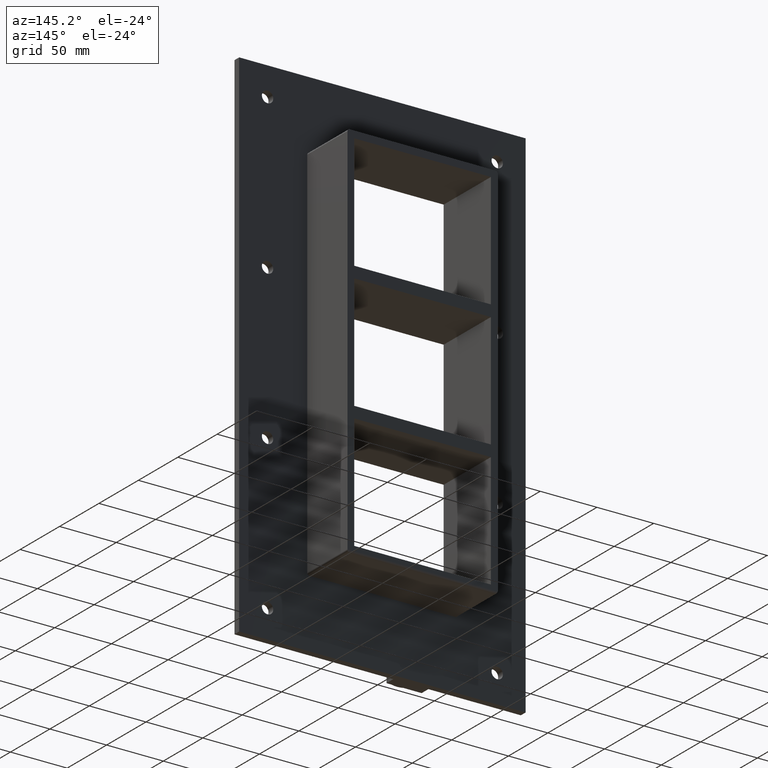
[diagram: clean part render]
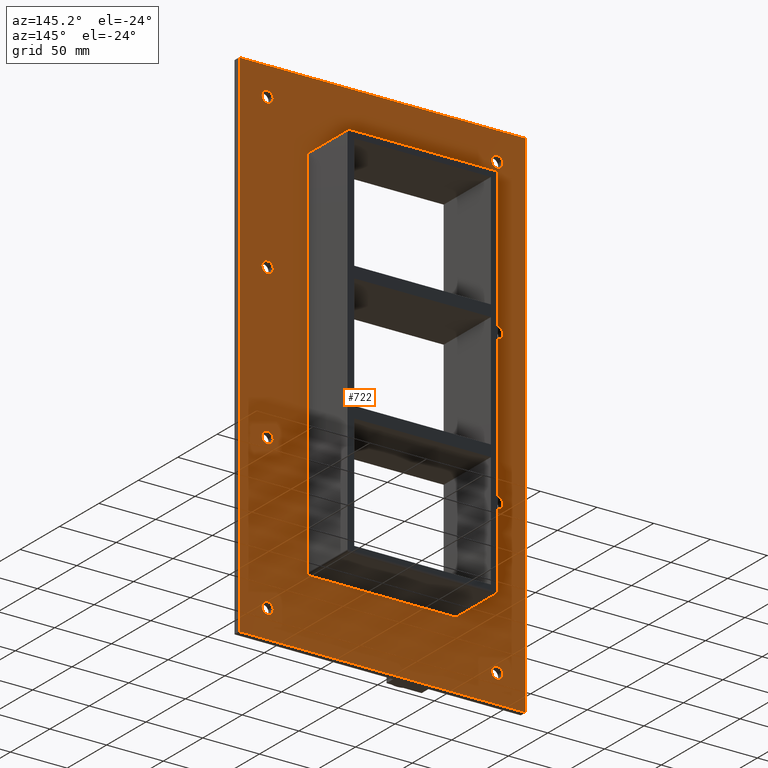
[diagram: same view with one face highlighted and labeled with its STEP entity id]
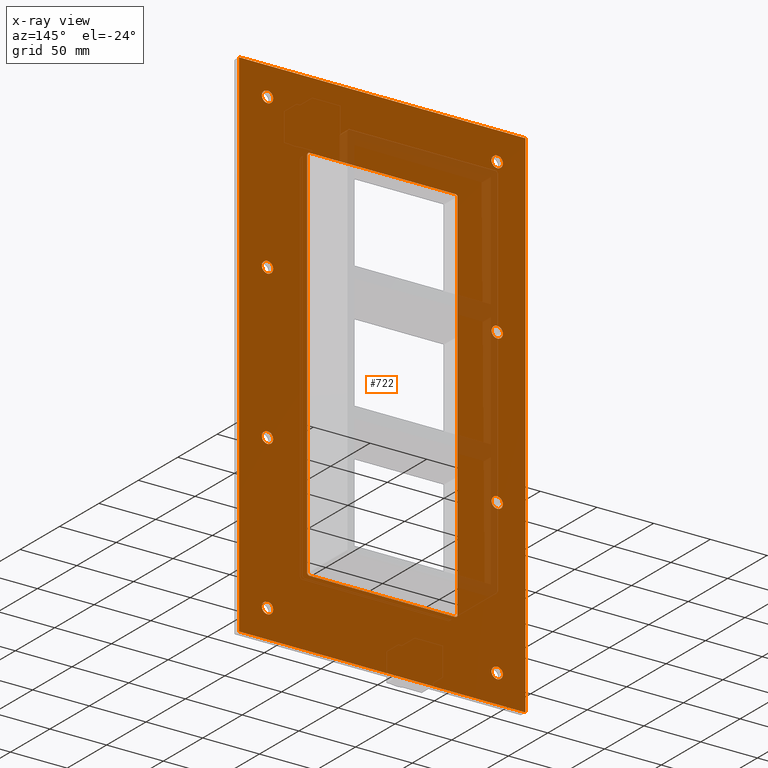
[diagram: x-ray of the same camera — body ghosted, the highlighted face saturated]
A machine part, auxiliary view. The second image highlights one B-rep face of the part: STEP entity #722.
The next image is the same camera in x-ray: the body ghosted, the highlighted face saturated — about 10% of this face is hidden behind the body in this view.
In plain terms, the highlighted planar face has unit normal (0, 1, 0).
Its self-contained STEP definition (entity closure, byte-faithful):
#73=CARTESIAN_POINT('',(-106.25000000000013,6.000000000000014,-202.49999999999997));
#74=VERTEX_POINT('',#73);
#75=CARTESIAN_POINT('',(-101.25000000000013,6.000000000000014,-202.49999999999997));
#76=DIRECTION('',(0.0,-1.0,0.0));
#77=DIRECTION('',(1.0,0.0,0.0));
#78=AXIS2_PLACEMENT_3D('',#75,#76,#77);
#79=CIRCLE('',#78,5.0);
#80=EDGE_CURVE('',#74,#74,#79,.T.);
#101=CARTESIAN_POINT('',(96.249999999999872,6.000000000000014,-67.499999999999972));
#102=VERTEX_POINT('',#101);
#103=CARTESIAN_POINT('',(101.24999999999987,6.000000000000014,-67.499999999999972));
#104=DIRECTION('',(0.0,-1.0,0.0));
#105=DIRECTION('',(1.0,0.0,0.0));
#106=AXIS2_PLACEMENT_3D('',#103,#104,#105);
#107=CIRCLE('',#106,5.0);
#108=EDGE_CURVE('',#102,#102,#107,.T.);
#129=CARTESIAN_POINT('',(-106.25000000000013,6.000000000000014,-67.499999999999972));
#130=VERTEX_POINT('',#129);
#131=CARTESIAN_POINT('',(-101.25000000000013,6.000000000000014,-67.499999999999972));
#132=DIRECTION('',(0.0,-1.0,0.0));
#133=DIRECTION('',(1.0,0.0,0.0));
#134=AXIS2_PLACEMENT_3D('',#131,#132,#133);
#135=CIRCLE('',#134,5.0);
#136=EDGE_CURVE('',#130,#130,#135,.T.);
#157=CARTESIAN_POINT('',(96.249999999999872,6.000000000000014,67.500000000000028));
#158=VERTEX_POINT('',#157);
#159=CARTESIAN_POINT('',(101.24999999999987,6.000000000000014,67.500000000000028));
#160=DIRECTION('',(0.0,-1.0,0.0));
#161=DIRECTION('',(1.0,0.0,0.0));
#162=AXIS2_PLACEMENT_3D('',#159,#160,#161);
#163=CIRCLE('',#162,5.0);
#164=EDGE_CURVE('',#158,#158,#163,.T.);
#185=CARTESIAN_POINT('',(-106.25000000000013,6.000000000000014,67.500000000000028));
#186=VERTEX_POINT('',#185);
#187=CARTESIAN_POINT('',(-101.25000000000013,6.000000000000014,67.500000000000028));
#188=DIRECTION('',(0.0,-1.0,0.0));
#189=DIRECTION('',(1.0,0.0,0.0));
#190=AXIS2_PLACEMENT_3D('',#187,#188,#189);
#191=CIRCLE('',#190,5.0);
#192=EDGE_CURVE('',#186,#186,#191,.T.);
#213=CARTESIAN_POINT('',(96.249999999999872,6.000000000000014,-202.5));
#214=VERTEX_POINT('',#213);
#215=CARTESIAN_POINT('',(101.24999999999987,6.000000000000014,-202.5));
#216=DIRECTION('',(0.0,-1.0,0.0));
#217=DIRECTION('',(1.0,0.0,0.0));
#218=AXIS2_PLACEMENT_3D('',#215,#216,#217);
#219=CIRCLE('',#218,5.0);
#220=EDGE_CURVE('',#214,#214,#219,.T.);
#241=CARTESIAN_POINT('',(-106.25000000000013,6.000000000000014,202.50000000000003));
#242=VERTEX_POINT('',#241);
#243=CARTESIAN_POINT('',(-101.25000000000013,6.000000000000014,202.50000000000003));
#244=DIRECTION('',(0.0,-1.0,0.0));
#245=DIRECTION('',(1.0,0.0,0.0));
#246=AXIS2_PLACEMENT_3D('',#243,#244,#245);
#247=CIRCLE('',#246,5.0);
#248=EDGE_CURVE('',#242,#242,#247,.T.);
#269=CARTESIAN_POINT('',(96.249999999999872,6.000000000000014,202.50000000000003));
#270=VERTEX_POINT('',#269);
#271=CARTESIAN_POINT('',(101.24999999999987,6.000000000000014,202.50000000000003));
#272=DIRECTION('',(0.0,-1.0,0.0));
#273=DIRECTION('',(1.0,0.0,0.0));
#274=AXIS2_PLACEMENT_3D('',#271,#272,#273);
#275=CIRCLE('',#274,5.0);
#276=EDGE_CURVE('',#270,#270,#275,.T.);
#589=CARTESIAN_POINT('',(-1.205161E-014,6.000000000000001,2.410322E-014));
#590=DIRECTION('',(0.0,1.0,0.0));
#591=DIRECTION('',(0.0,0.0,1.0));
#592=AXIS2_PLACEMENT_3D('',#589,#590,#591);
#593=PLANE('',#592);
#594=CARTESIAN_POINT('',(-126.25,6.000000000000001,227.50000000000003));
#595=VERTEX_POINT('',#594);
#596=CARTESIAN_POINT('',(126.25,6.000000000000001,227.50000000000003));
#597=VERTEX_POINT('',#596);
#598=CARTESIAN_POINT('',(-126.25,6.000000000000001,227.50000000000003));
#599=DIRECTION('',(1.0,0.0,0.0));
#600=VECTOR('',#599,252.5);
#601=LINE('',#598,#600);
#602=EDGE_CURVE('',#595,#597,#601,.T.);
#603=ORIENTED_EDGE('',*,*,#602,.T.);
#604=CARTESIAN_POINT('',(126.25,6.000000000000001,-227.49999999999997));
#605=VERTEX_POINT('',#604);
#606=CARTESIAN_POINT('',(126.24999999999999,6.000000000000001,227.50000000000003));
#607=DIRECTION('',(0.0,0.0,-1.0));
#608=VECTOR('',#607,455.0);
#609=LINE('',#606,#608);
#610=EDGE_CURVE('',#597,#605,#609,.T.);
#611=ORIENTED_EDGE('',*,*,#610,.T.);
#612=CARTESIAN_POINT('',(-126.25,6.000000000000001,-227.49999999999997));
#613=VERTEX_POINT('',#612);
#614=CARTESIAN_POINT('',(126.24999999999999,6.000000000000001,-227.5));
#615=DIRECTION('',(-1.0,0.0,0.0));
#616=VECTOR('',#615,252.5);
#617=LINE('',#614,#616);
#618=EDGE_CURVE('',#605,#613,#617,.T.);
#619=ORIENTED_EDGE('',*,*,#618,.T.);
#620=CARTESIAN_POINT('',(-126.25,6.000000000000001,-227.5));
#621=DIRECTION('',(0.0,0.0,1.0));
#622=VECTOR('',#621,455.0);
#623=LINE('',#620,#622);
#624=EDGE_CURVE('',#613,#595,#623,.T.);
#625=ORIENTED_EDGE('',*,*,#624,.T.);
#626=EDGE_LOOP('',(#603,#611,#619,#625));
#627=FACE_OUTER_BOUND('',#626,.T.);
#628=ORIENTED_EDGE('',*,*,#80,.T.);
#629=EDGE_LOOP('',(#628));
#630=FACE_BOUND('',#629,.T.);
#631=ORIENTED_EDGE('',*,*,#108,.T.);
#632=EDGE_LOOP('',(#631));
#633=FACE_BOUND('',#632,.T.);
#634=ORIENTED_EDGE('',*,*,#136,.T.);
#635=EDGE_LOOP('',(#634));
#636=FACE_BOUND('',#635,.T.);
#637=ORIENTED_EDGE('',*,*,#164,.T.);
#638=EDGE_LOOP('',(#637));
#639=FACE_BOUND('',#638,.T.);
#640=ORIENTED_EDGE('',*,*,#192,.T.);
#641=EDGE_LOOP('',(#640));
#642=FACE_BOUND('',#641,.T.);
#643=ORIENTED_EDGE('',*,*,#220,.T.);
#644=EDGE_LOOP('',(#643));
#645=FACE_BOUND('',#644,.T.);
#646=ORIENTED_EDGE('',*,*,#248,.T.);
#647=EDGE_LOOP('',(#646));
#648=FACE_BOUND('',#647,.T.);
#649=ORIENTED_EDGE('',*,*,#276,.T.);
#650=EDGE_LOOP('',(#649));
#651=FACE_BOUND('',#650,.T.);
#652=CARTESIAN_POINT('',(-66.25,6.000000000000001,165.49999999999997));
#653=VERTEX_POINT('',#652);
#654=CARTESIAN_POINT('',(-64.25,6.000000000000001,167.5));
#655=VERTEX_POINT('',#654);
#656=CARTESIAN_POINT('',(-64.25,6.000000000000001,165.49999999999997));
#657=DIRECTION('',(0.0,1.0,0.0));
#658=DIRECTION('',(-0.707106781186541,0.0,0.707106781186554));
#659=AXIS2_PLACEMENT_3D('',#656,#657,#658);
#660=CIRCLE('',#659,2.0);
#661=EDGE_CURVE('',#653,#655,#660,.T.);
#662=ORIENTED_EDGE('',*,*,#661,.F.);
#663=CARTESIAN_POINT('',(-66.25,6.000000000000001,-165.49999999999997));
#664=VERTEX_POINT('',#663);
#665=CARTESIAN_POINT('',(-66.25,6.000000000000001,-165.49999999999997));
#666=DIRECTION('',(0.0,0.0,1.0));
#667=VECTOR('',#666,331.0);
#668=LINE('',#665,#667);
#669=EDGE_CURVE('',#664,#653,#668,.T.);
#670=ORIENTED_EDGE('',*,*,#669,.F.);
#671=CARTESIAN_POINT('',(-64.25,6.000000000000001,-167.5));
#672=VERTEX_POINT('',#671);
#673=CARTESIAN_POINT('',(-64.25,6.000000000000001,-165.49999999999997));
#674=DIRECTION('',(0.0,1.0,0.0));
#675=DIRECTION('',(-0.707106781186541,0.0,-0.707106781186554));
#676=AXIS2_PLACEMENT_3D('',#673,#674,#675);
#677=CIRCLE('',#676,2.0);
#678=EDGE_CURVE('',#672,#664,#677,.T.);
#679=ORIENTED_EDGE('',*,*,#678,.F.);
#680=CARTESIAN_POINT('',(64.25,6.000000000000001,-167.5));
#681=VERTEX_POINT('',#680);
#682=CARTESIAN_POINT('',(64.25,6.000000000000001,-167.5));
#683=DIRECTION('',(-1.0,0.0,0.0));
#684=VECTOR('',#683,128.5);
#685=LINE('',#682,#684);
#686=EDGE_CURVE('',#681,#672,#685,.T.);
#687=ORIENTED_EDGE('',*,*,#686,.F.);
#688=CARTESIAN_POINT('',(66.25,6.000000000000001,-165.49999999999997));
#689=VERTEX_POINT('',#688);
#690=CARTESIAN_POINT('',(64.25,6.000000000000001,-165.49999999999997));
#691=DIRECTION('',(0.0,1.0,0.0));
#692=DIRECTION('',(0.707106781186541,0.0,-0.707106781186554));
#693=AXIS2_PLACEMENT_3D('',#690,#691,#692);
#694=CIRCLE('',#693,2.0);
#695=EDGE_CURVE('',#689,#681,#694,.T.);
#696=ORIENTED_EDGE('',*,*,#695,.F.);
#697=CARTESIAN_POINT('',(66.25,6.000000000000001,165.5));
#698=VERTEX_POINT('',#697);
#699=CARTESIAN_POINT('',(66.25,6.000000000000001,165.5));
#700=DIRECTION('',(0.0,0.0,-1.0));
#701=VECTOR('',#700,330.99999999999994);
#702=LINE('',#699,#701);
#703=EDGE_CURVE('',#698,#689,#702,.T.);
#704=ORIENTED_EDGE('',*,*,#703,.F.);
#705=CARTESIAN_POINT('',(64.25,6.000000000000001,167.5));
#706=VERTEX_POINT('',#705);
#707=CARTESIAN_POINT('',(64.25,6.000000000000001,165.5));
#708=DIRECTION('',(0.0,1.0,0.0));
#709=DIRECTION('',(0.707106781186554,0.0,0.707106781186541));
#710=AXIS2_PLACEMENT_3D('',#707,#708,#709);
#711=CIRCLE('',#710,2.0);
#712=EDGE_CURVE('',#706,#698,#711,.T.);
#713=ORIENTED_EDGE('',*,*,#712,.F.);
#714=CARTESIAN_POINT('',(-64.250000000000014,6.000000000000001,167.5));
#715=DIRECTION('',(1.0,0.0,0.0));
#716=VECTOR('',#715,128.5);
#717=LINE('',#714,#716);
#718=EDGE_CURVE('',#655,#706,#717,.T.);
#719=ORIENTED_EDGE('',*,*,#718,.F.);
#720=EDGE_LOOP('',(#662,#670,#679,#687,#696,#704,#713,#719));
#721=FACE_BOUND('',#720,.T.);
#722=ADVANCED_FACE('',(#627,#630,#633,#636,#639,#642,#645,#648,#651,#721),#593,.T.);